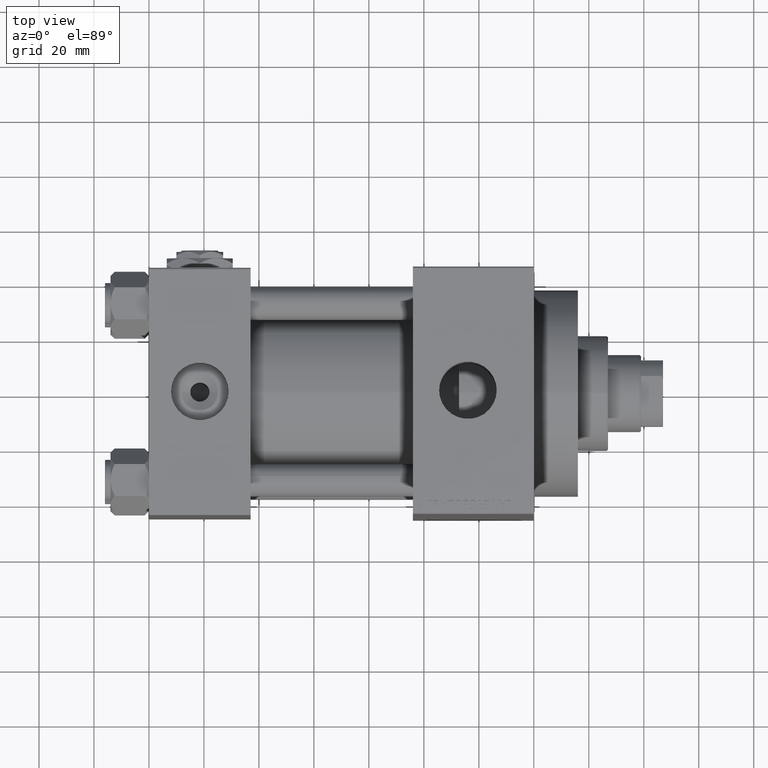
[diagram: clean part render]
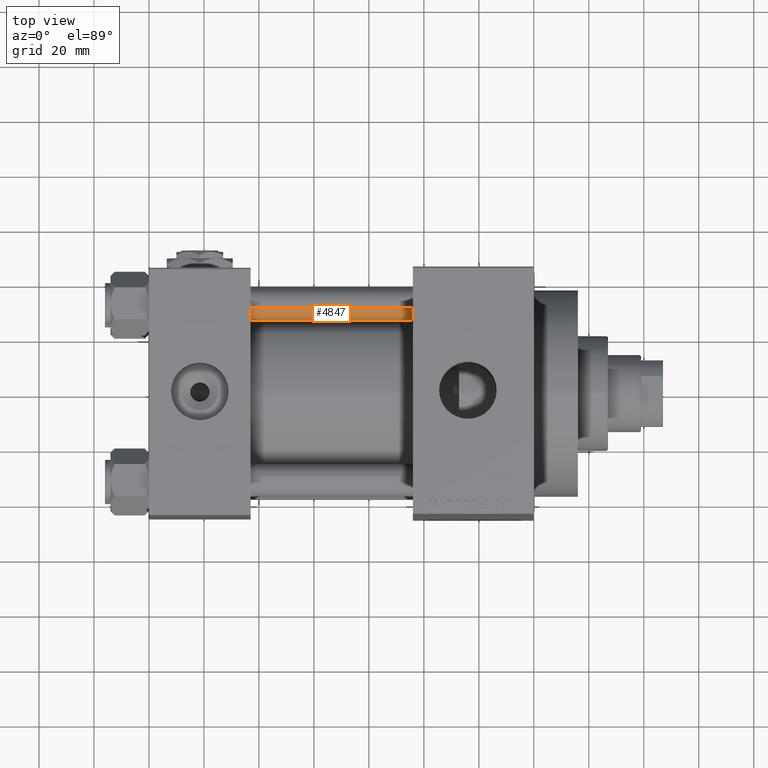
[diagram: same view with one face highlighted and labeled with its STEP entity id]
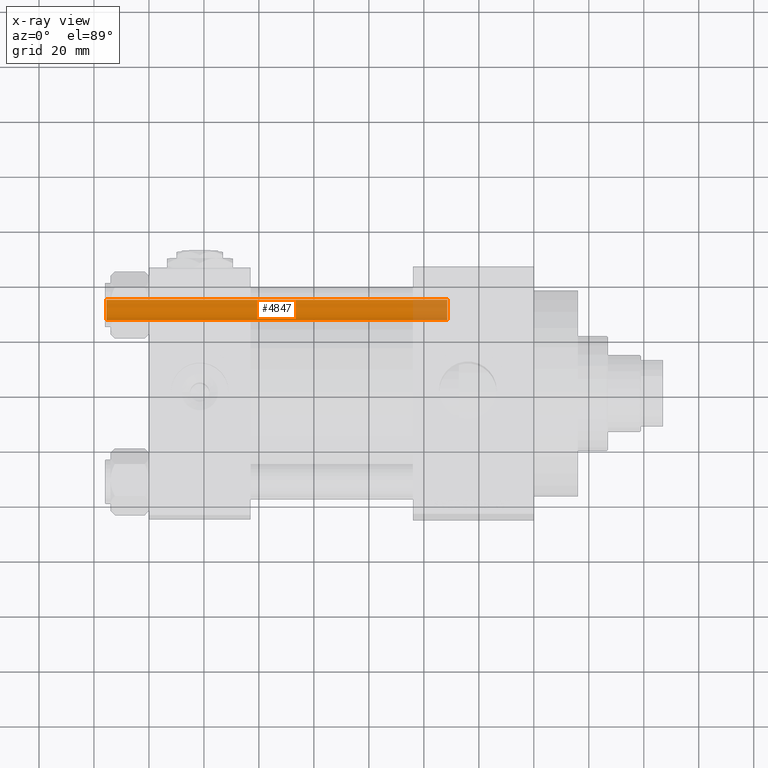
[diagram: x-ray of the same camera — body ghosted, the highlighted face saturated]
A machine part, top view. The second image highlights one B-rep face of the part: STEP entity #4847.
The next image is the same camera in x-ray: the body ghosted, the highlighted face saturated — about 10% of this face is hidden behind the body in this view.
In plain terms, the highlighted cylindrical surface (edge-blend (fillet) strip) has radius 6 mm, axis along (-1, -0, 0).
Its self-contained STEP definition (entity closure, byte-faithful):
#355 = DIRECTION ( 'NONE',  ( -1.000000000000000000, 0.000000000000000000, 0.000000000000000000 ) ) ;
#1097 = CIRCLE ( 'NONE', #35884, 6.000000000000000888 ) ;
#3116 = CARTESIAN_POINT ( 'NONE',  ( 0.000000000000000000, 0.000000000000000000, 0.4999999999999865663 ) ) ;
#4743 = DIRECTION ( 'NONE',  ( -0.000000000000000000, -0.000000000000000000, -1.000000000000000000 ) ) ;
#4847 = ADVANCED_FACE ( 'NONE', ( #13521 ), #10785, .T. ) ;
#6923 = CIRCLE ( 'NONE', #40910, 6.000000000000000888 ) ;
#8948 = DIRECTION ( 'NONE',  ( -0.000000000000000000, -0.000000000000000000, -1.000000000000000000 ) ) ;
#9633 = EDGE_CURVE ( 'NONE', #43344, #26183, #6923, .T. ) ;
#10708 = ORIENTED_EDGE ( 'NONE', *, *, #43675, .T. ) ;
#10785 = CYLINDRICAL_SURFACE ( 'NONE', #47067, 6.000000000000000888 ) ;
#11131 = DIRECTION ( 'NONE',  ( 1.000000000000000000, 0.000000000000000000, 0.000000000000000000 ) ) ;
#11247 = CARTESIAN_POINT ( 'NONE',  ( -6.000000000000000888, 0.000000000000000000, 0.4999999999999865663 ) ) ;
#11267 = EDGE_CURVE ( 'NONE', #15864, #26183, #19351, .T. ) ;
#13521 = FACE_OUTER_BOUND ( 'NONE', #24244, .T. ) ;
#14610 = EDGE_CURVE ( 'NONE', #15864, #33060, #1097, .T. ) ;
#15091 = DIRECTION ( 'NONE',  ( 0.000000000000000000, 0.000000000000000000, -1.000000000000000000 ) ) ;
#15864 = VERTEX_POINT ( 'NONE', #27415 ) ;
#16923 = VECTOR ( 'NONE', #8948, 1000.000000000000000 ) ;
#18806 = CARTESIAN_POINT ( 'NONE',  ( 0.000000000000000000, 0.000000000000000000, 124.5000000000000000 ) ) ;
#19351 = LINE ( 'NONE', #31229, #36895 ) ;
#24244 = EDGE_LOOP ( 'NONE', ( #47176, #27096, #10708, #45085 ) ) ;
#24902 = DIRECTION ( 'NONE',  ( -0.000000000000000000, -0.000000000000000000, -1.000000000000000000 ) ) ;
#25891 = CARTESIAN_POINT ( 'NONE',  ( 0.000000000000000000, 0.000000000000000000, 125.0000000000000000 ) ) ;
#26183 = VERTEX_POINT ( 'NONE', #47878 ) ;
#27096 = ORIENTED_EDGE ( 'NONE', *, *, #14610, .T. ) ;
#27415 = CARTESIAN_POINT ( 'NONE',  ( 6.000000000000000888, 7.347880794884120722E-16, 124.5000000000000000 ) ) ;
#27761 = LINE ( 'NONE', #31491, #16923 ) ;
#31229 = CARTESIAN_POINT ( 'NONE',  ( 6.000000000000000888, 7.347880794884120722E-16, 125.0000000000000000 ) ) ;
#31491 = CARTESIAN_POINT ( 'NONE',  ( -6.000000000000000888, 0.000000000000000000, 125.0000000000000000 ) ) ;
#33060 = VERTEX_POINT ( 'NONE', #36271 ) ;
#35884 = AXIS2_PLACEMENT_3D ( 'NONE', #18806, #15091, #11131 ) ;
#36271 = CARTESIAN_POINT ( 'NONE',  ( -6.000000000000000888, 0.000000000000000000, 124.5000000000000000 ) ) ;
#36895 = VECTOR ( 'NONE', #4743, 1000.000000000000000 ) ;
#37275 = DIRECTION ( 'NONE',  ( -0.000000000000000000, -0.000000000000000000, 1.000000000000000000 ) ) ;
#37774 = DIRECTION ( 'NONE',  ( 1.000000000000000000, 0.000000000000000000, 0.000000000000000000 ) ) ;
#40910 = AXIS2_PLACEMENT_3D ( 'NONE', #3116, #37275, #37774 ) ;
#43344 = VERTEX_POINT ( 'NONE', #11247 ) ;
#43675 = EDGE_CURVE ( 'NONE', #33060, #43344, #27761, .T. ) ;
#45085 = ORIENTED_EDGE ( 'NONE', *, *, #9633, .T. ) ;
#47067 = AXIS2_PLACEMENT_3D ( 'NONE', #25891, #24902, #355 ) ;
#47176 = ORIENTED_EDGE ( 'NONE', *, *, #11267, .F. ) ;
#47878 = CARTESIAN_POINT ( 'NONE',  ( 6.000000000000000888, 7.347880794884120722E-16, 0.4999999999999865663 ) ) ;